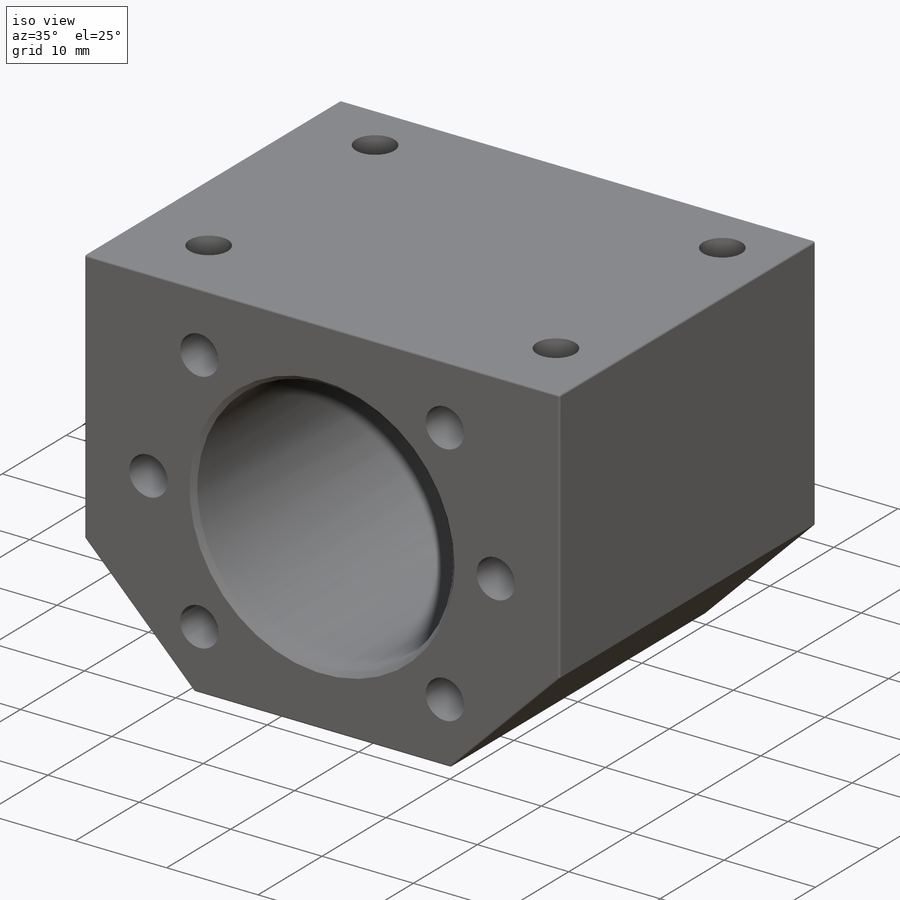
[diagram: iso view]
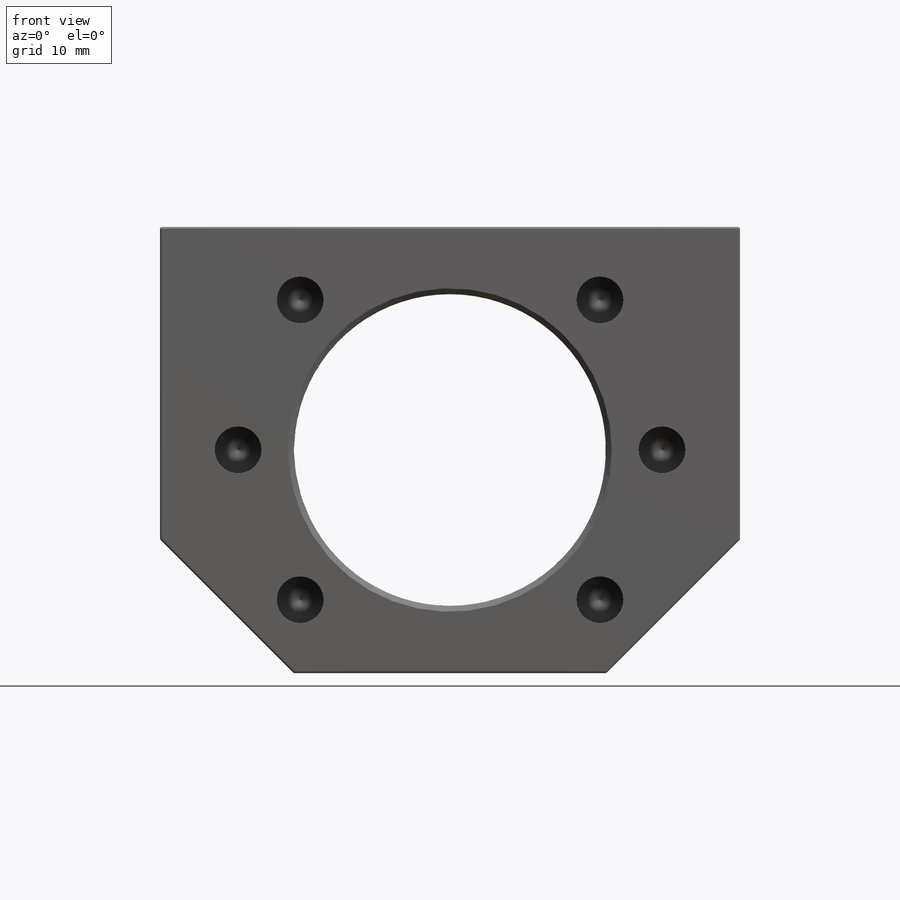
[diagram: front view]
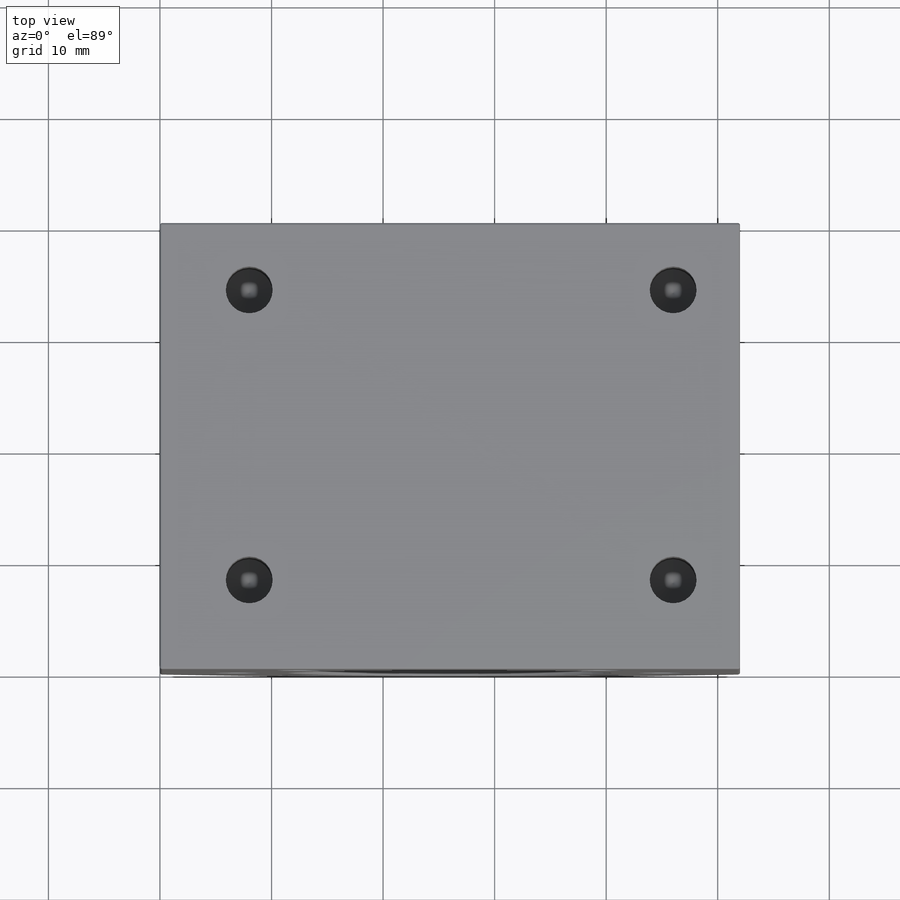
[diagram: top view]
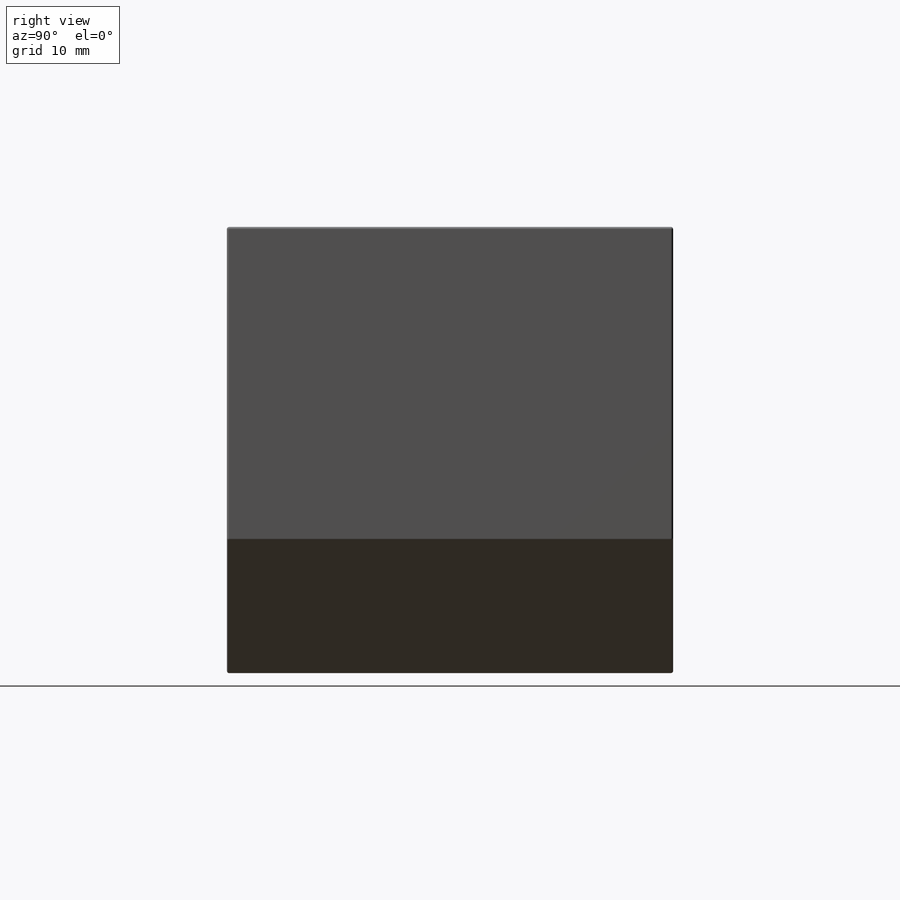
[diagram: right view]
SOLIDWORKS PART (.sldprt)
format: sldprt  version: not decoded by parser v0  size: 424,960 bytes
history: native  units: mm
features: thread x10, sketch x7, fillet x7, plane x3, hole x2, chamfer x2, material x1, extrude x1, cut_extrude x1 (+10 scaffold rows collapsed)
feature tree (44):
  scaffold x10  (default folders/planes/origin — collapsed)
  material  "Material <nicht angegeben>"
  plane  "Ebene vorne"
  plane  "Ebene oben"
  plane  "Ebene rechts"
  sketch  "Skizze1"  dims[c1.D1=52.0mm c1.D2=40.0mm c1.D3=12.0mm c1.D4=12.0mm c1.D5=12.0mm c1.D6=28.0mm c2.D6=135.0deg c3.D6=0.0mm]
  extrude  "Aufsatz-Linear austragen1"  Depth=40mm
  sketch  "Skizze2"  dims[D1=~9.897071mm]
  cut_extrude  "Schnitt-Linear austragen1"  Depth=40mm
  sketch  "Skizze16"  dims[D1=~16.932474mm]
  hole  "M5 Gewindebohrung2"  Diameter=4.2mm Depth=14mm
  sketch  "Skizze18"  dims[c1.D1=~15.461679mm c2.D1=45.0deg]
  sketch  "Skizze17"  dims[hole-wizard template sketch: 46 standard entries collapsed; hole parameters kept: c15.Bohrerdurchmesser=4.2mm c15.Bohrungstiefe=14.0mm c15.D3=~14.816244mm c15.Spitzenwinkel=118.0deg]
  thread  "Bohrungsgewinde7"  Diameter=10mm  [1 undecoded]
  thread  "Bohrungsgewinde8"  Diameter=10mm  [1 undecoded]
  thread  "Bohrungsgewinde9"  Diameter=10mm  [1 undecoded]
  thread  "Bohrungsgewinde10"  Diameter=10mm  [1 undecoded]
  thread  "Bohrungsgewinde11"  Diameter=10mm  [1 undecoded]
  thread  "Bohrungsgewinde12"  Diameter=10mm  [1 undecoded]
  hole  "M5 Gewindebohrung3"  Diameter=4.2mm Depth=14mm
  sketch  "Skizze20"
  sketch  "Skizze19"  dims[hole-wizard template sketch: 46 standard entries collapsed; hole parameters kept: c15.Bohrerdurchmesser=4.2mm c15.Bohrungstiefe=14.0mm c15.D3=~14.816244mm c15.Spitzenwinkel=118.0deg]
  thread  "Bohrungsgewinde13"  Diameter=10mm  [1 undecoded]
  thread  "Bohrungsgewinde14"  Diameter=10mm  [1 undecoded]
  thread  "Bohrungsgewinde15"  Diameter=10mm  [1 undecoded]
  thread  "Bohrungsgewinde16"  Diameter=10mm  [1 undecoded]
  chamfer  "Fase1"  Distance=0.5mm Angle=45deg
  chamfer  "Fase2"  Distance=0.5mm Angle=45deg
  fillet  "Verrundung1"  Radius=0.2mm
  fillet  "Verrundung2"  Radius=0.2mm
  fillet  "Verrundung3"  Radius=0.2mm
  fillet  "Verrundung4"  Radius=0.2mm
  fillet  "Verrundung5"  Radius=0.2mm
  fillet  "Verrundung6"  Radius=0.2mm
  fillet  "Verrundung7"  Radius=0.2mm
decode coverage: 29 of 30 modeling features carry decoded parameters
note: ~ marks probable driven/reference dimensions
note: 10 parameter values undecoded
note: suppression state not decoded; provenance and decode notes live in map.json
